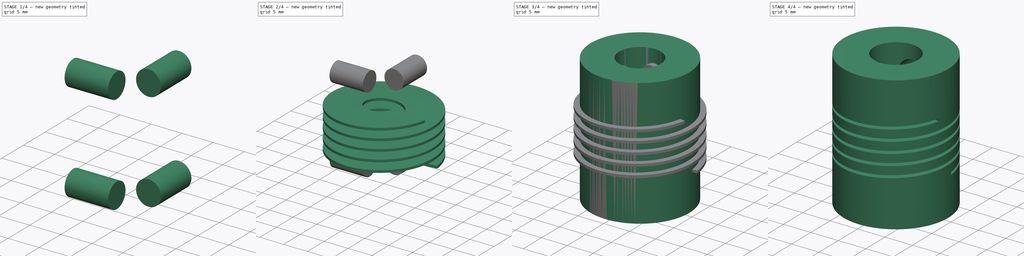
[diagram: build sequence overview — one tinted view per stage of 4, left to right]
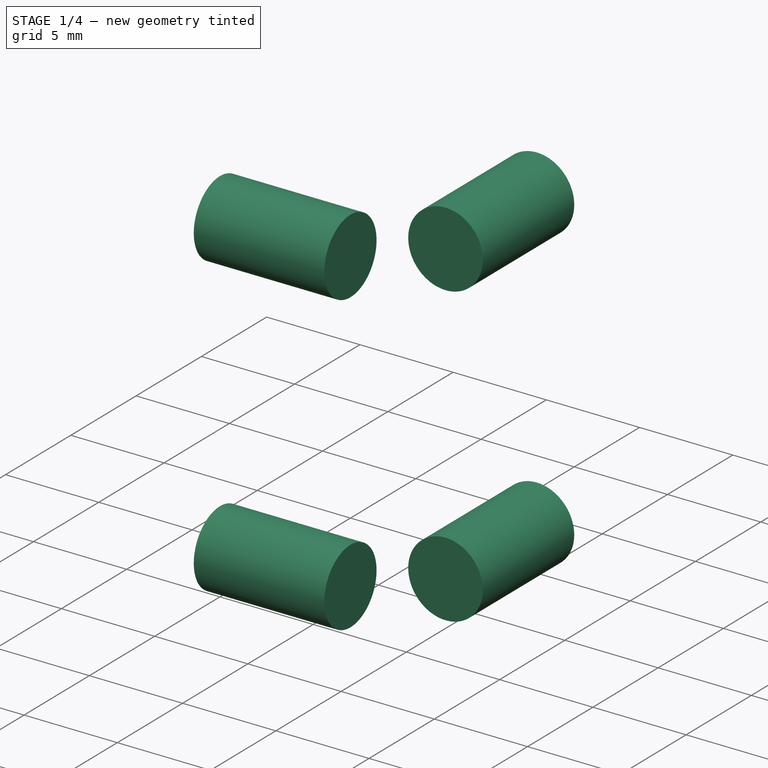
[diagram: stage 1 of 4 — iso view after this stage's code; geometry added in this stage tinted green]
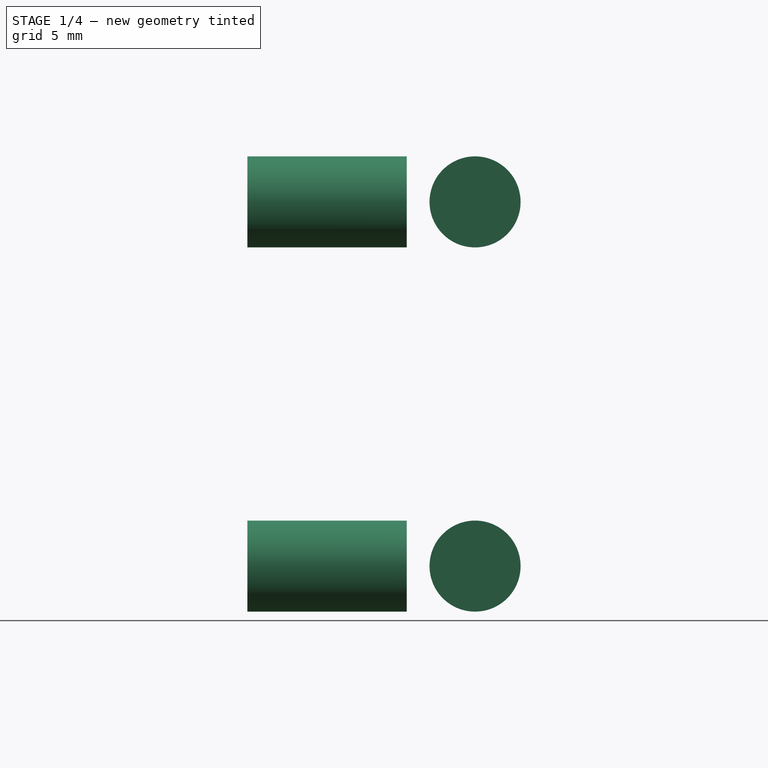
[diagram: stage 1 of 4 — front view after this stage's code; geometry added in this stage tinted green]
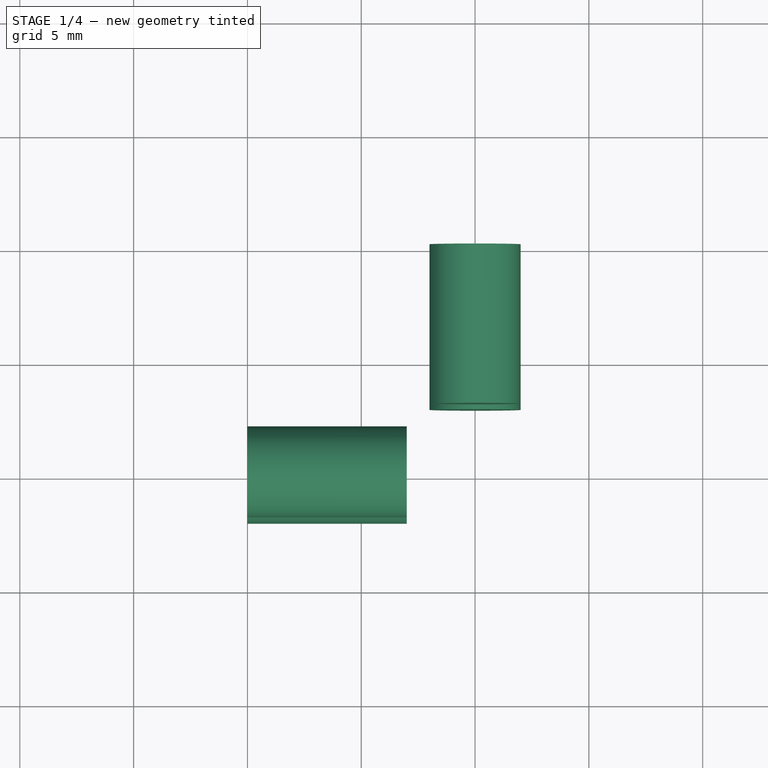
[diagram: stage 1 of 4 — top view after this stage's code; geometry added in this stage tinted green]
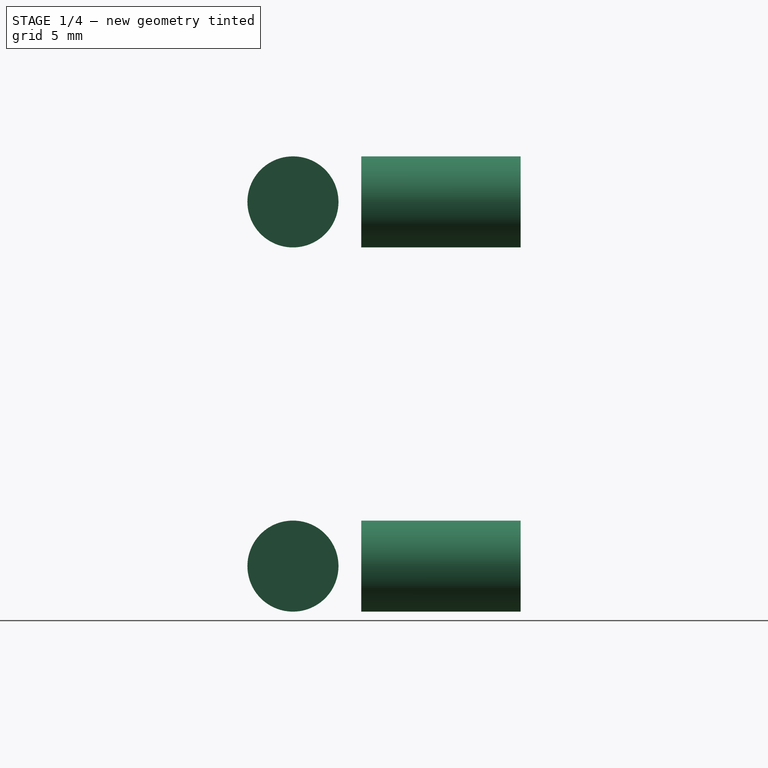
[diagram: stage 1 of 4 — right view after this stage's code; geometry added in this stage tinted green]
FCSTD DOCUMENT  (FreeCAD 0.14R3700 (Git))
Label: coupler 5mm to 8mm
License: CC-BY 3.0
LicenseURL: http://creativecommons.org/licenses/by/3.0/
objects: Sketcher::SketchObject×7, PartDesign::Pad×4, App::DocumentObjectGroup×3, PartDesign::Pocket×2, Part::Cut×2, Part::Helix×1, Part::Sweep×1, Part::MultiFuse×1
note: 24 computed .brp shape members not serialized (recipe doc carries the construction recipe); baked Part::Feature solids carry a one-line shape summary decoded from their .brp

FEATURE [Sketcher::SketchObject] Sketch005  label="Set Screws 1 Sketch"
  Placement = pos=(0,10,0) rot=(1,0,0;1.5708rad)
  sketch-geometry (2):
    g0: Circle CenterX=0 CenterY=20 CenterZ=0 NormalX=0 NormalY=0 NormalZ=1 Radius=2
    g1: Circle CenterX=0 CenterY=4 CenterZ=0 NormalX=0 NormalY=0 NormalZ=1 Radius=2
  constraints (6):
    c: PointOnObject(g0,g-2)
    c: Radius(g0) = 2
    c: DistanceY(g-1,g0) = 20
    c: PointOnObject(g1,g-2)
    c: Equal(g0,g1)
    c: DistanceY(g1,g0) = 16
FEATURE [Sketcher::SketchObject] Sketch006  label="Set Screws 2 Sketch"
  Placement = pos=(-10,0,0) rot=(0.57735,0.57735,0.57735;2.0944rad)
  sketch-geometry (2):
    g0: Circle CenterX=0 CenterY=20 CenterZ=0 NormalX=0 NormalY=0 NormalZ=1 Radius=2
    g1: Circle CenterX=0 CenterY=4 CenterZ=0 NormalX=0 NormalY=0 NormalZ=1 Radius=2
  constraints (6):
    c: PointOnObject(g0,g-2)
    c: Radius(g0) = 2
    c: DistanceY(g-1,g0) = 20
    c: PointOnObject(g1,g-2)
    c: Equal(g1,g0)
    c: DistanceY(g1,g0) = 16
FEATURE [PartDesign::Pad] Pad002  label="Set Screws 1 Pad"
  Length = 7
  Length2 = 100
  Placement = pos=(0,10,0) rot=(1,0,0;1.5708rad)
  Sketch = -> Sketch005
  Type = 0
FEATURE [PartDesign::Pad] Pad003  label="Set Screws 2 Pad"
  Length = 7
  Length2 = 100
  Placement = pos=(-10,0,0) rot=(0.57735,0.57735,0.57735;2.0944rad)
  Sketch = -> Sketch006
  Type = 0
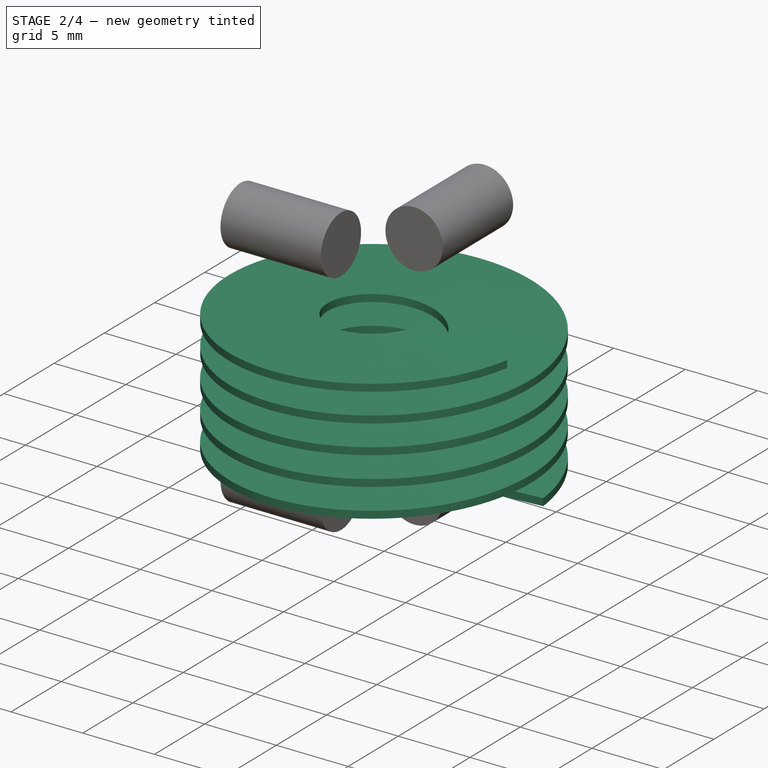
[diagram: stage 2 of 4 — iso view after this stage's code; geometry added in this stage tinted green]
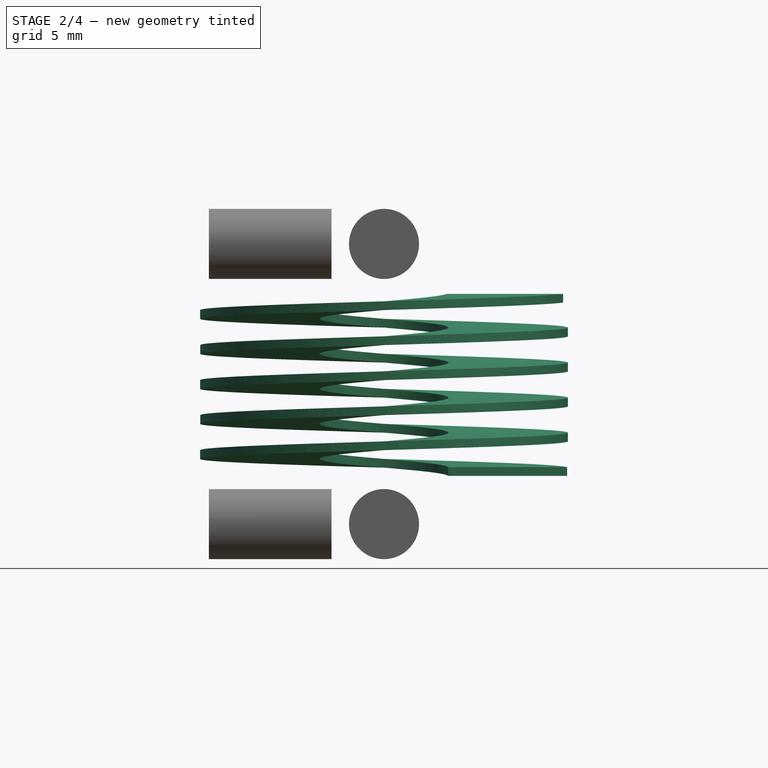
[diagram: stage 2 of 4 — front view after this stage's code; geometry added in this stage tinted green]
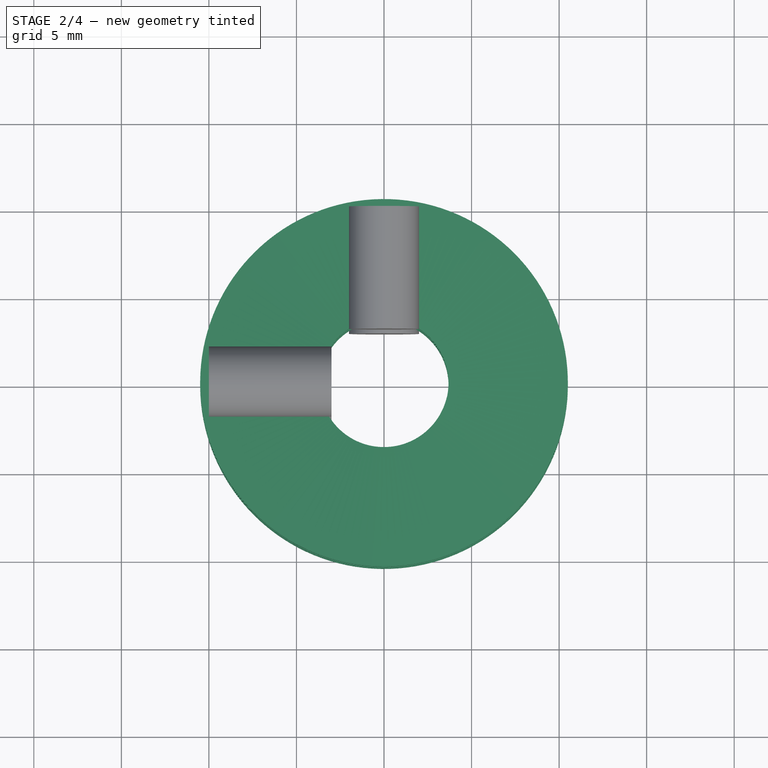
[diagram: stage 2 of 4 — top view after this stage's code; geometry added in this stage tinted green]
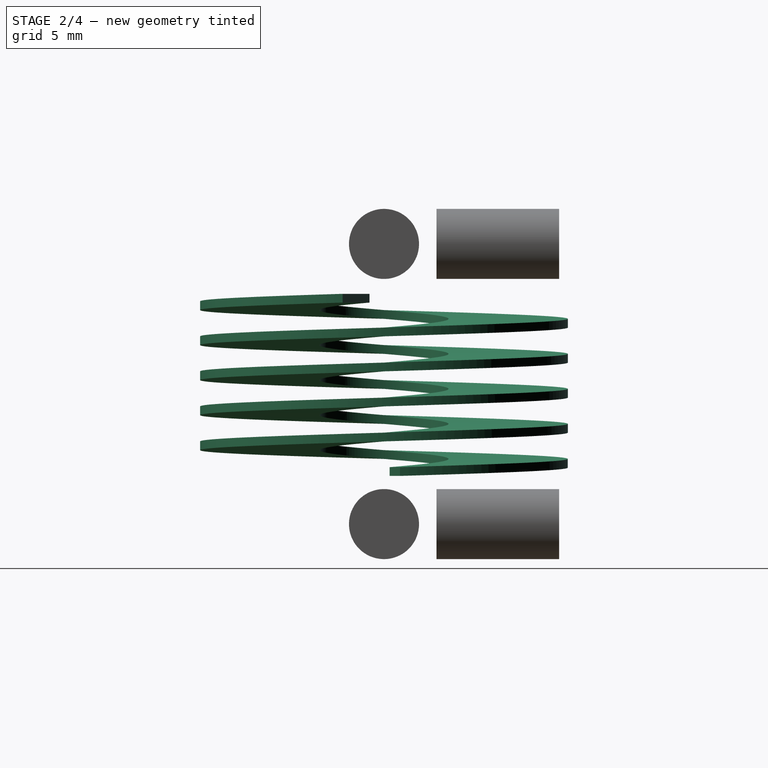
[diagram: stage 2 of 4 — right view after this stage's code; geometry added in this stage tinted green]
FEATURE [App::DocumentObjectGroup] Group  label="Coupler Shape"
  Group = -> [Pad,Pocket,Pocket001]
FEATURE [Part::Helix] Helix
  Angle = 0
  Height = 9.9
  LocalCoord = 0
  Pitch = 2
  Placement = pos=(0,0,7) rot=(0,0,1;0.087266rad)
  Radius = 10
  Style = 1
FEATURE [Sketcher::SketchObject] Sketch003
  Placement = pos=(0,0,7) rot=(0,0,1;0.087266rad)
  sketch-geometry (4):
    g0: LineSegment StartX=10.5 StartY=0 StartZ=0 EndX=3.68435 EndY=0 EndZ=0
    g1: LineSegment StartX=10.5 StartY=0 StartZ=0 EndX=10.5 EndY=0.1 EndZ=0
    g2: LineSegment StartX=10.5 StartY=0.1 StartZ=0 EndX=3.68435 EndY=0.1 EndZ=0
    g3: LineSegment StartX=3.68435 StartY=0.1 StartZ=0 EndX=3.68435 EndY=0 EndZ=0
  constraints (12):
    c: PointOnObject(g0,g-1)
    c: Horizontal(g0)
    c: DistanceX(g-1,g0) = 10.5
    c: Coincident(g1,g0)
    c: Coincident(g2,g1)
    c: Horizontal(g2)
    c: Coincident(g3,g2)
    c: Coincident(g3,g0)
    c: Vertical(g3)
    c: Vertical(g1)
    c: DistanceY(g3) = -0.1
    c: DistanceX(g0) = -6.81565
FEATURE [PartDesign::Pad] Pad001
  Length = 0.5
  Length2 = 100
  Midplane = true
  Placement = pos=(0,0,7) rot=(0,0,1;0.087266rad)
  Sketch = -> Sketch003
  Type = 0
FEATURE [Sketcher::SketchObject] Sketch004  label="Jaws Profile Sketch"
  ExternalGeometry = -> [Pad001]
  Placement = pos=(0,0,7) rot=(0.998099,0.043578,0.043578;1.5727rad)
  Support = -> Pad001 [Face1]
  sketch-geometry (4):
    g0: LineSegment StartX=10.5 StartY=0.25 StartZ=0 EndX=3.68435 EndY=0.25 EndZ=0
    g1: LineSegment StartX=10.5 StartY=-0.25 StartZ=0 EndX=3.68435 EndY=-0.25 EndZ=0
    g2: LineSegment StartX=10.5 StartY=0.25 StartZ=0 EndX=10.5 EndY=-0.25 EndZ=0
    g3: LineSegment StartX=3.68435 StartY=0.25 StartZ=0 EndX=3.68435 EndY=-0.25 EndZ=0
  constraints (8):
    c: Coincident(g0,g-3)
    c: Coincident(g0,g-3)
    c: Coincident(g1,g-4)
    c: Coincident(g1,g-4)
    c: Coincident(g2,g0)
    c: Coincident(g2,g1)
    c: Coincident(g3,g0)
    c: Coincident(g3,g1)
FEATURE [Part::Sweep] Sweep
  Frenet = true
  Sections = -> [Sketch004]
  Solid = true
  Spine = -> Helix [Edge1]
  Transition = 1
FEATURE [Part::MultiFuse] Fusion  label="Set Screw Holes (all)"
  Shapes = -> [Pad002,Pad003]
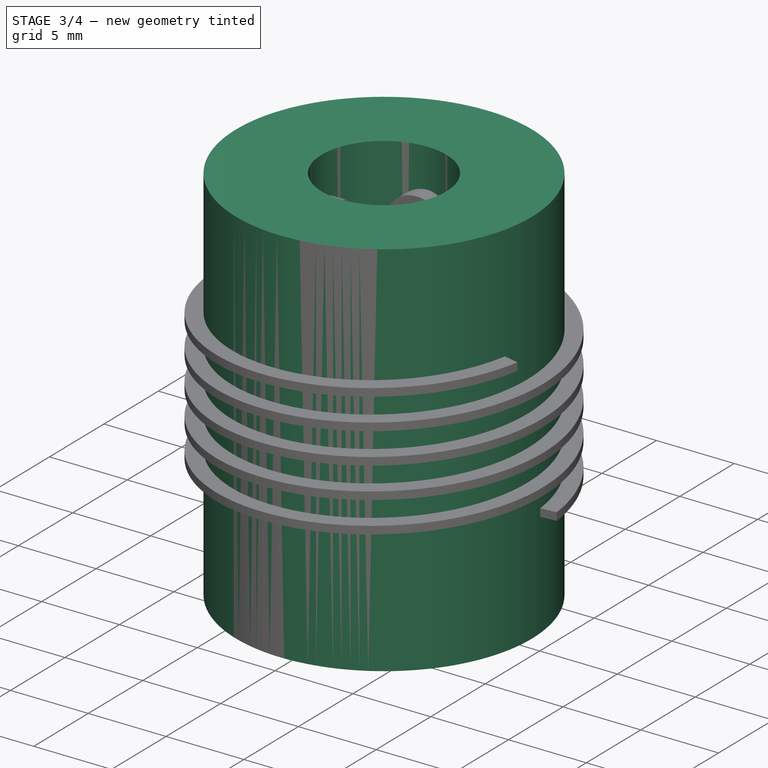
[diagram: stage 3 of 4 — iso view after this stage's code; geometry added in this stage tinted green]
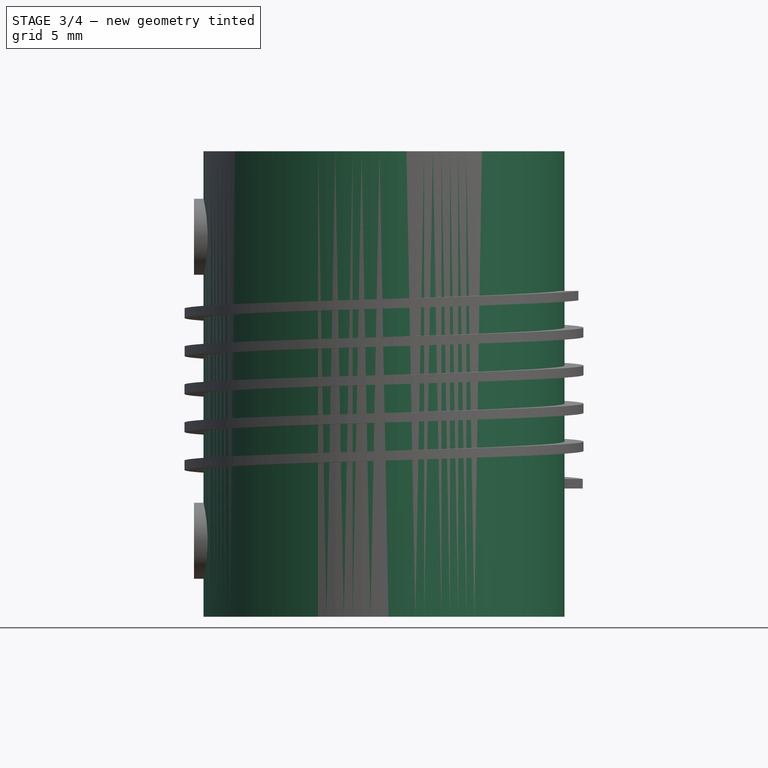
[diagram: stage 3 of 4 — front view after this stage's code; geometry added in this stage tinted green]
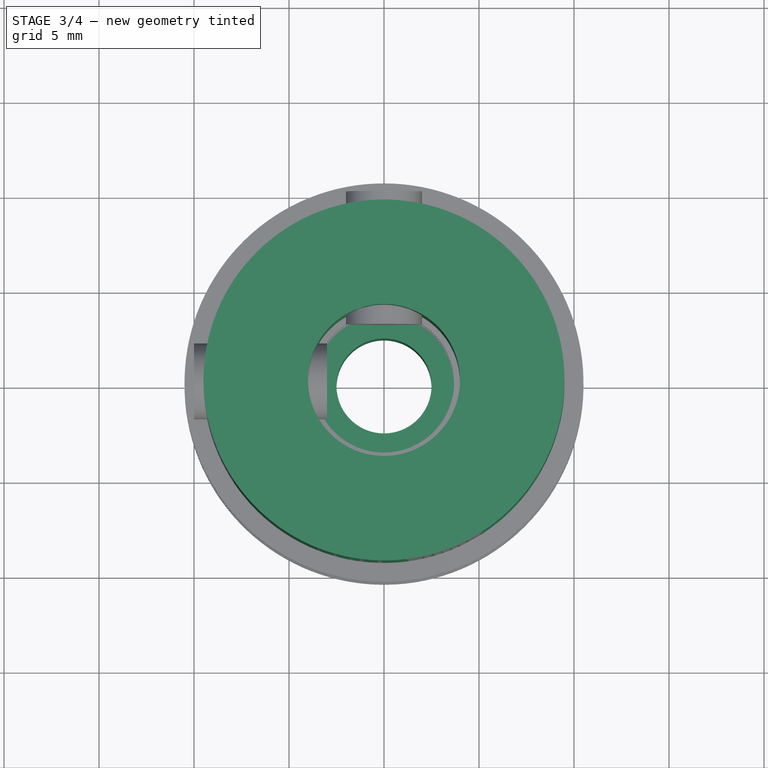
[diagram: stage 3 of 4 — top view after this stage's code; geometry added in this stage tinted green]
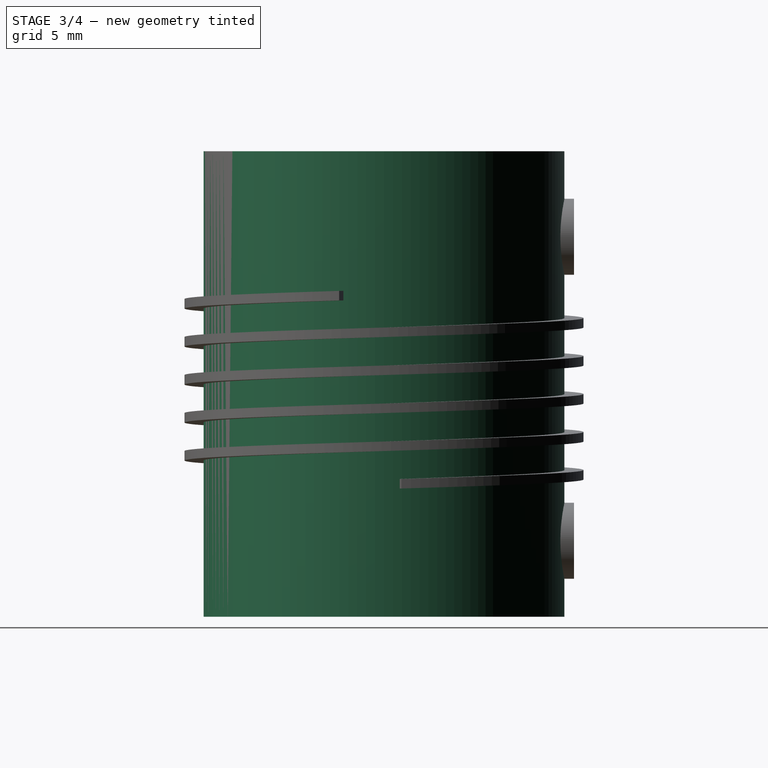
[diagram: stage 3 of 4 — right view after this stage's code; geometry added in this stage tinted green]
FEATURE [Sketcher::SketchObject] Sketch
  sketch-geometry (1):
    g0: Circle CenterX=0 CenterY=0 CenterZ=0 NormalX=0 NormalY=0 NormalZ=1 Radius=9.5
  constraints (2):
    c: Coincident(g0,g-1)
    c: Radius(g0) = 9.5
FEATURE [PartDesign::Pad] Pad
  Length = 24.5
  Length2 = 100
  Sketch = -> Sketch
  Type = 0
FEATURE [Sketcher::SketchObject] Sketch001
  Placement = pos=(0,0,24.5) rot=(0,0,1;0rad)
  Support = -> Pad [Face3]
  sketch-geometry (1):
    g0: Circle CenterX=0 CenterY=0 CenterZ=0 NormalX=0 NormalY=0 NormalZ=1 Radius=4
  constraints (2):
    c: Coincident(g0,g-1)
    c: Radius(g0) = 4
FEATURE [PartDesign::Pocket] Pocket
  Length = 18
  Sketch = -> Sketch001
  Type = 0
FEATURE [Sketcher::SketchObject] Sketch002
  Placement = pos=(0,0,0) rot=(1,0,0;3.14159rad)
  Support = -> Pocket [Face2]
  sketch-geometry (1):
    g0: Circle CenterX=0 CenterY=0 CenterZ=0 NormalX=0 NormalY=0 NormalZ=1 Radius=2.5
  constraints (2):
    c: Coincident(g0,g-1)
    c: Radius(g0) = 2.5
FEATURE [PartDesign::Pocket] Pocket001  label="Coupler (before jaws)"
  Length = 5
  Sketch = -> Sketch002
  Type = 1
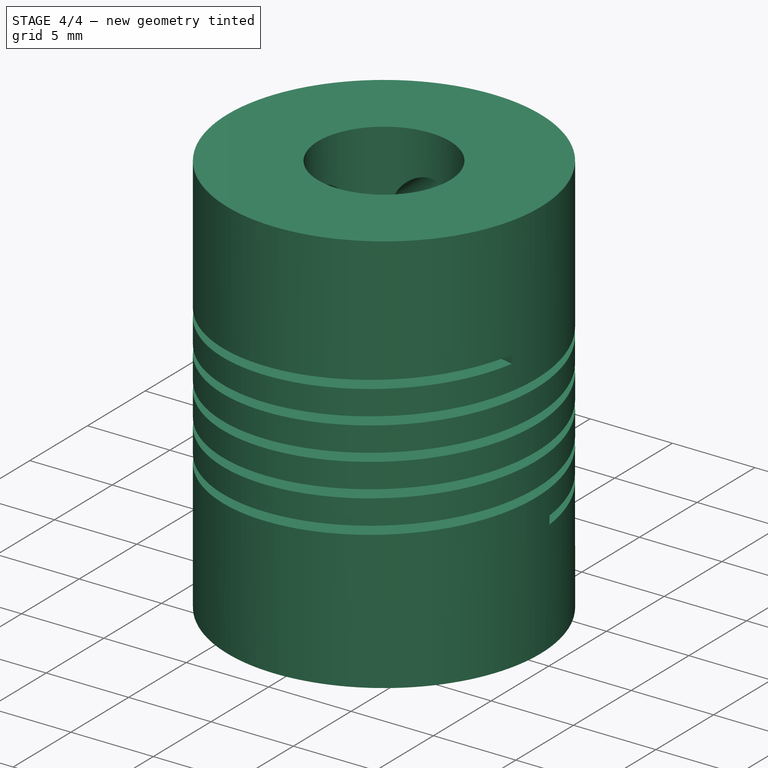
[diagram: stage 4 of 4 — iso view after this stage's code; geometry added in this stage tinted green]
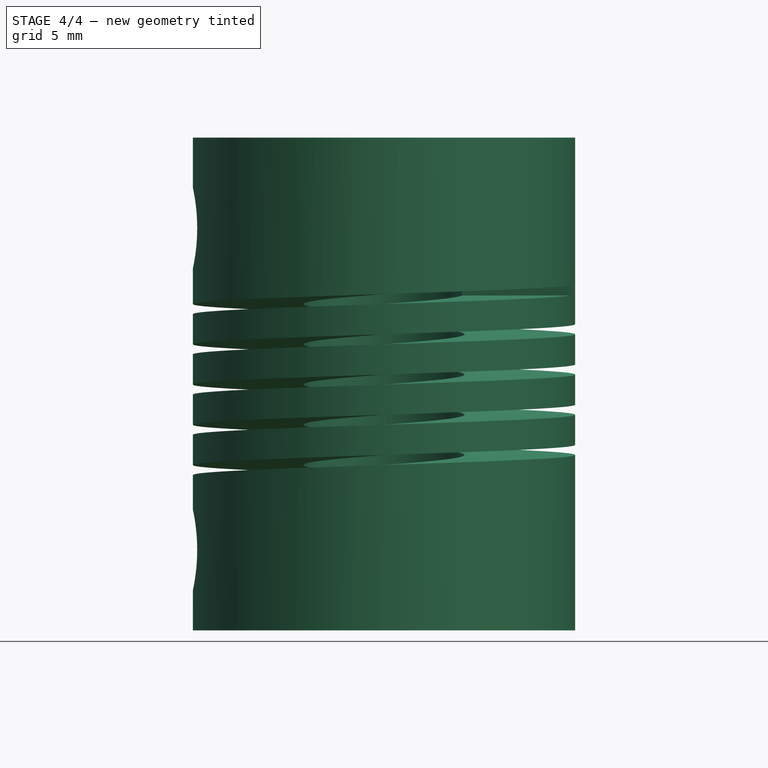
[diagram: stage 4 of 4 — front view after this stage's code; geometry added in this stage tinted green]
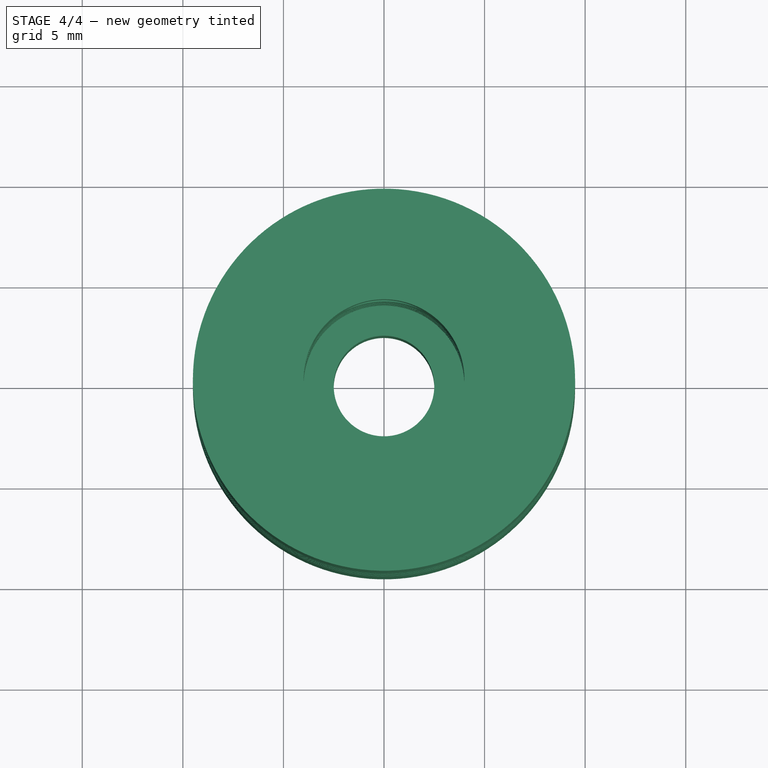
[diagram: stage 4 of 4 — top view after this stage's code; geometry added in this stage tinted green]
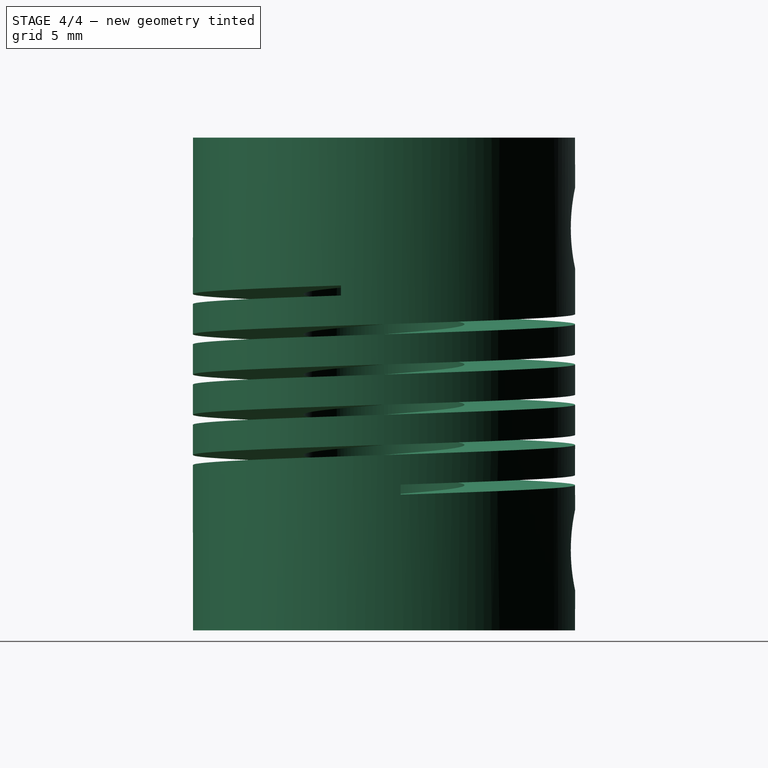
[diagram: stage 4 of 4 — right view after this stage's code; geometry added in this stage tinted green]
FEATURE [App::DocumentObjectGroup] Group001  label="Jaws"
  Group = -> [Helix,Pad001,Sketch004,Sweep]
FEATURE [Part::Cut] Cut  label="Coupler with Jaws"
  Base = -> Pocket001
  Tool = -> Sweep
FEATURE [App::DocumentObjectGroup] Group002  label="Set Screw Holes"
  Group = -> [Pad002,Pad003,Fusion]
FEATURE [Part::Cut] Cut001  label="Coupler 5mm to 8mm"
  Base = -> Cut
  Tool = -> Fusion
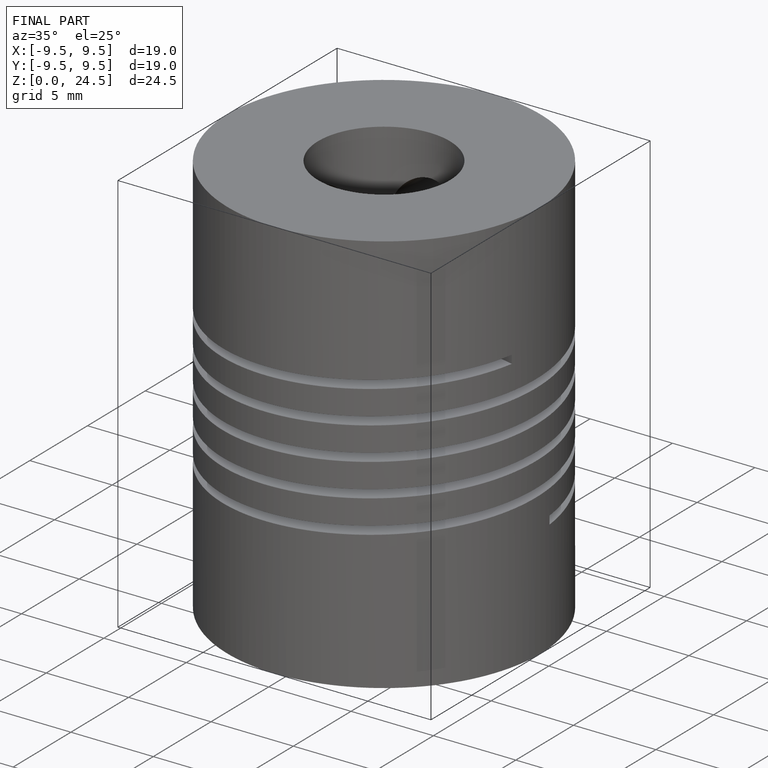
[diagram: finished part — iso view with bounding-box wireframe]
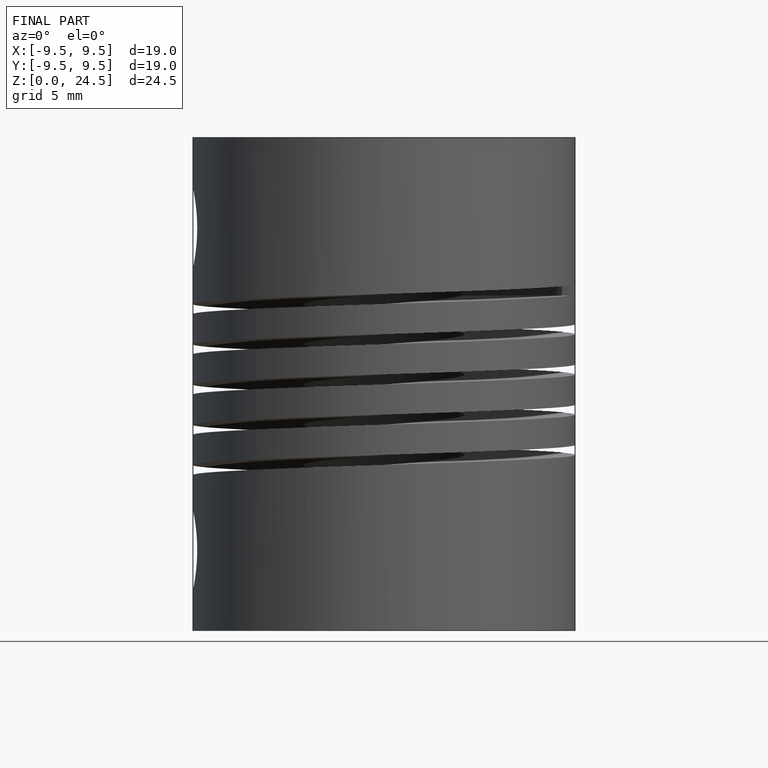
[diagram: finished part — front view with bounding-box wireframe]
